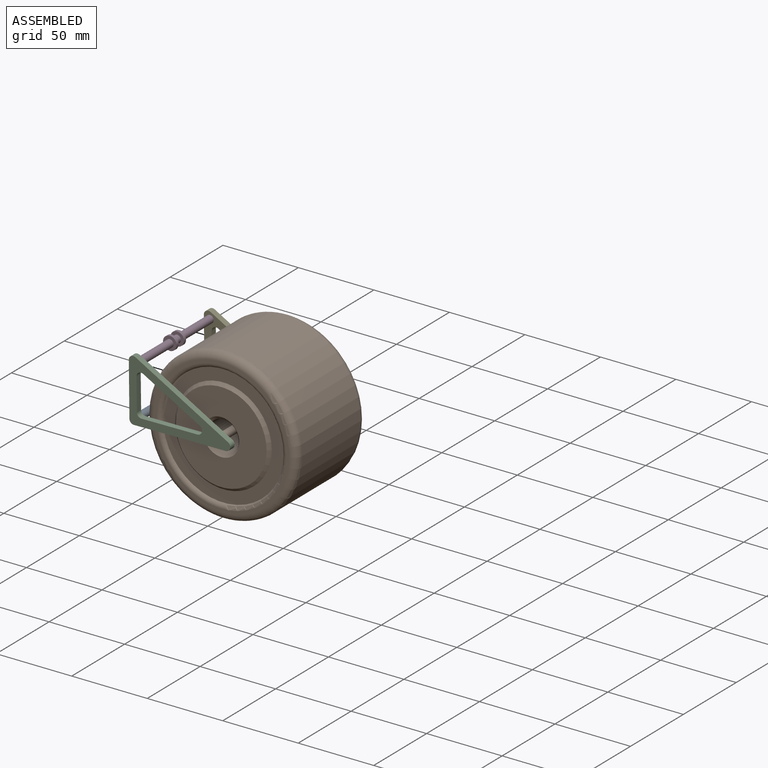
[diagram: assembled view]
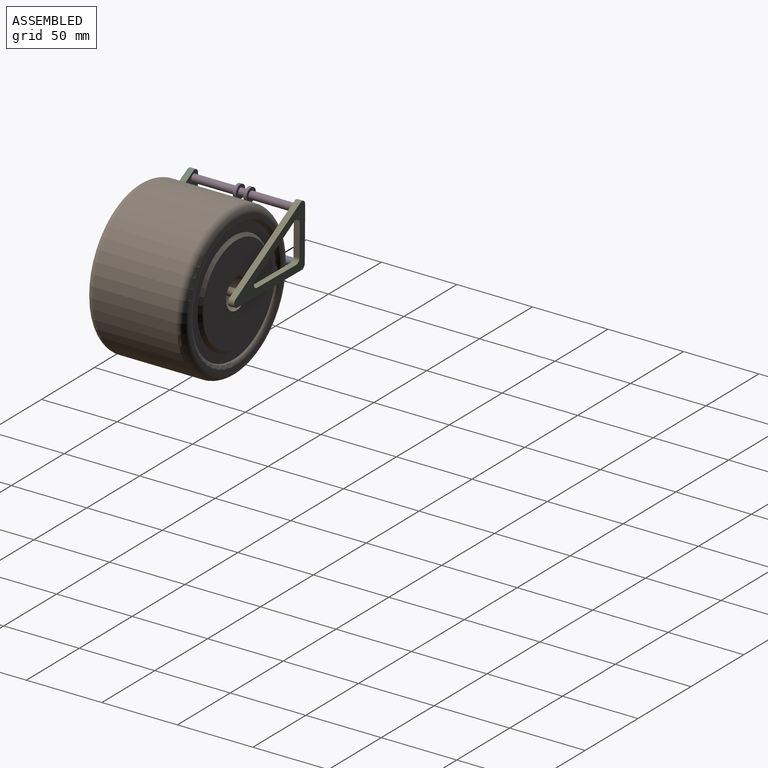
[diagram: assembled view, second angle]
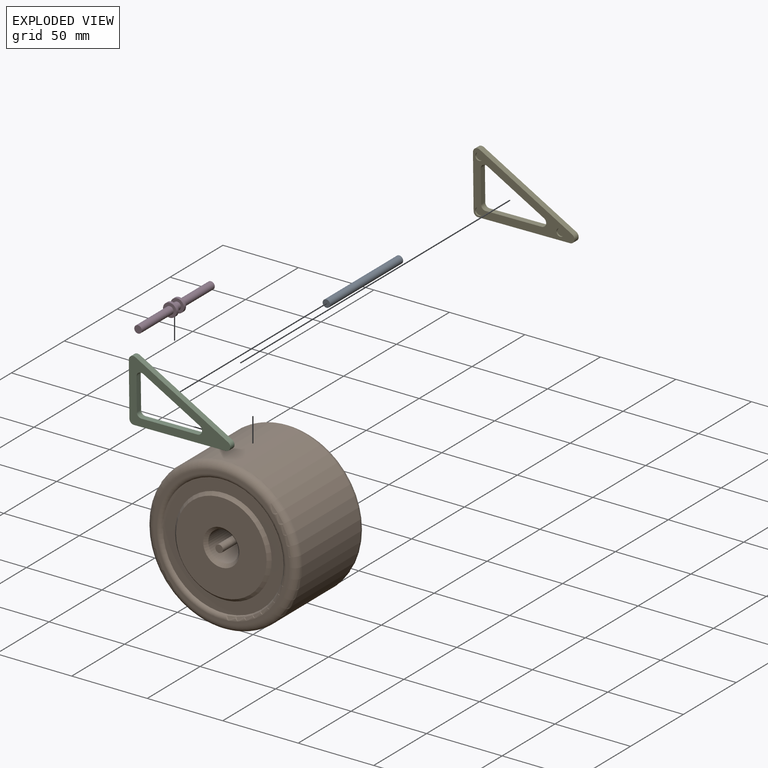
[diagram: exploded view]
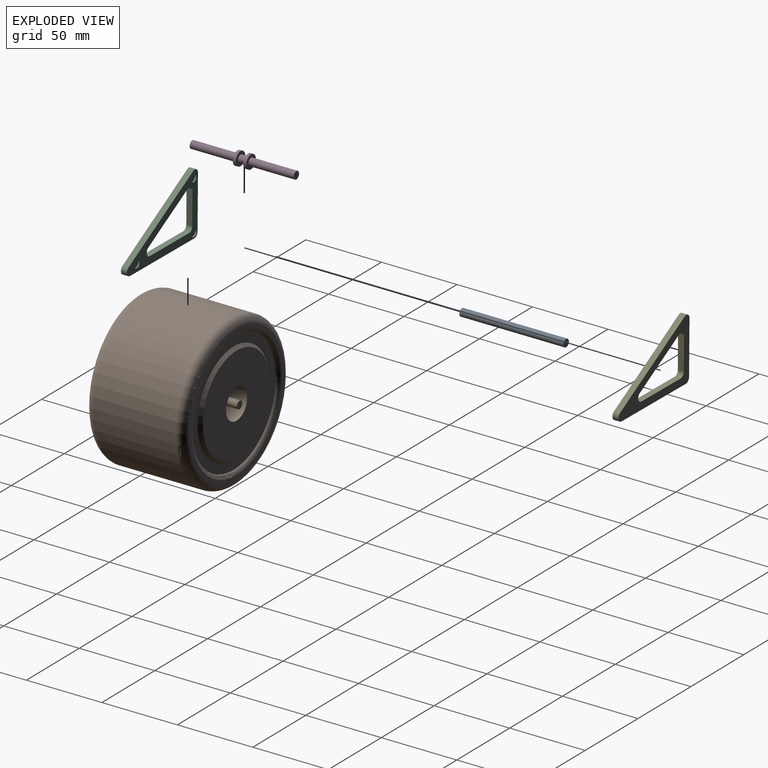
[diagram: exploded view, second angle]
ASSEMBLY  parts=5 mates=5
PART A: 3 faces, bbox 69x5x5 mm
  f0: plane 5x5mm, normal (-1,0,0), area 19.6mm2, adj f2
  f1: plane 5x5mm, normal (1,0,0), area 19.6mm2, adj f2
  f2: cylinder r=2.5mm len=69mm, axis (1,0,0), area 1083.8mm2, adj f0,f1
PART B: 22 faces, bbox 108.2x108.2x69 mm
  f0: cylinder r=50mm len=100mm, axis (0,0,-1), area 17278.8mm2, adj f3,f4
  f1: plane 90x90mm, normal (0,0,1), area 599.2mm2, adj f4,f10
  f2: plane 90x90mm, normal (0,0,-1), area 599.2mm2, adj f3,f17
  f3: torus R=45mm, axis (0,0,1), area 2377.7mm2, adj f0,f2
  f4: torus R=45mm, axis (0,0,1), area 2377.7mm2, adj f0,f1
  f5: plane 80x80mm, normal (0,0,1), area 1809.6mm2, adj f10,f11
  f6: plane 20x20mm, normal (0,0,1), area 294.5mm2, adj f7,f20
  f7: cylinder r=10mm len=28mm, axis (0,0,1), area 1759.3mm2, adj f6,f8
  f8: cone r=10mm half-angle=45deg, axis (0,0,1), area 195.5mm2, adj f7,f9
  f9: plane 60x60mm, normal (0,0,1), area 2375mm2, adj f8,f11
  f10: torus R=42.83mm, axis (0,0,1), area 956.1mm2, adj f1,f5
  f11: cone r=30mm half-angle=45deg, axis (0,0,-1), area 550.9mm2, adj f5,f9
  f12: plane 80x80mm, normal (0,0,-1), area 1394.9mm2, adj f16,f17
  f13: plane 20x20mm, normal (0,0,-1), area 294.5mm2, adj f14,f18
  f14: cylinder r=10mm len=30mm, axis (0,0,-1), area 1885mm2, adj f13,f15
  f15: plane 64x64mm, normal (0,0,-1), area 2902.8mm2, adj f14,f16
  f16: cone r=32mm half-angle=45deg, axis (0,0,1), area 586.5mm2, adj f12,f15
  f17: torus R=42.83mm, axis (0,0,1), area 956.1mm2, adj f2,f12
  f18: cylinder r=2.5mm len=32mm, axis (0,0,1), area 502.7mm2, adj f13,f19
  f19: plane 5x5mm, normal (0,0,-1), area 19.6mm2, adj f18
  f20: cylinder r=2.5mm len=32mm, axis (0,0,-1), area 502.7mm2, adj f6,f21
  f21: plane 5x5mm, normal (0,0,1), area 19.6mm2, adj f20
PART C: 20 faces, bbox 66.8x41.1x4 mm
  f0: cylinder r=3mm len=5.6mm, axis (0,0,-1), area 31.4mm2, adj f1,f11,f12,f13
  f1: plane 60.8x35.11mm, normal (0.5,0.87,0), area 280.8mm2, adj f0,f2,f12,f13
  f2: cylinder r=3mm len=4.5mm, axis (0,0,-1), area 25.1mm2, adj f1,f3,f12,f13
  f3: plane 35.11x4mm, normal (-1,0,0), area 140.4mm2, adj f2,f4,f12,f13
  f4: cylinder r=3mm len=4mm, axis (0,0,-1), area 18.8mm2, adj f3,f11,f12,f13
  f5: plane 37.14x21.45mm, normal (-0.5,-0.87,0), area 171.6mm2, adj f6,f10,f12,f13
  f6: cylinder r=3mm len=5.6mm, axis (0,0,-1), area 31.4mm2, adj f5,f7,f12,f13
  f7: plane 37.14x4mm, normal (0,1,0), area 148.6mm2, adj f6,f8,f12,f13
  f8: cylinder r=3mm len=4mm, axis (0,0,-1), area 18.8mm2, adj f7,f9,f12,f13
  f9: plane 21.45x4mm, normal (1,0,0), area 85.8mm2, adj f8,f10,f12,f13
  f10: cylinder r=3mm len=4.5mm, axis (0,0,-1), area 25.1mm2, adj f5,f9,f12,f13
  f11: plane 60.8x4mm, normal (0,-1,0), area 243.2mm2, adj f0,f4,f12,f13
  f12: plane 66.8x41.11mm, normal (0,0,1), area 862.9mm2, adj f0,f1,f2,f3,f4,f5,f6,f7
  f13: plane 66.8x41.11mm, normal (0,0,-1), area 804mm2, adj f0,f1,f2,f3,f4,f5,f6,f7
  f14: cylinder r=2.5mm len=5mm, axis (0,0,-1), area 15.7mm2, adj f13,f15
  f15: plane 5x5mm, normal (0,0,-1), area 19.6mm2, adj f14
  f16: cylinder r=2.5mm len=5mm, axis (0,0,-1), area 15.7mm2, adj f13,f17
  f17: plane 5x5mm, normal (0,0,-1), area 19.6mm2, adj f16
  f18: cylinder r=2.5mm len=5mm, axis (0,0,-1), area 15.7mm2, adj f13,f19
  f19: plane 5x5mm, normal (0,0,-1), area 19.6mm2, adj f18
PART D: 11 faces, bbox 69x9x9 mm
  f0: plane 5x5mm, normal (-1,0,0), area 19.6mm2, adj f6
  f1: plane 5x5mm, normal (1,0,0), area 19.6mm2, adj f8
  f2: plane 9x9mm, normal (1,0,0), area 44mm2, adj f7,f9
  f3: plane 9x9mm, normal (-1,0,0), area 44mm2, adj f6,f9
  f4: plane 9x9mm, normal (-1,0,0), area 44mm2, adj f7,f10
  f5: plane 9x9mm, normal (1,0,0), area 44mm2, adj f8,f10
  f6: cylinder r=2.5mm len=30mm, axis (1,0,0), area 471.2mm2, adj f0,f3
  f7: cylinder r=2.5mm len=5mm, axis (1,0,0), area 78.5mm2, adj f2,f4
  f8: cylinder r=2.5mm len=30mm, axis (-1,0,0), area 471.2mm2, adj f1,f5
  f9: cylinder r=4.5mm len=9mm, axis (1,0,0), area 56.5mm2, adj f2,f3
  f10: cylinder r=4.5mm len=9mm, axis (1,0,0), area 56.5mm2, adj f4,f5
PART E: 20 faces, bbox 66.8x41.1x4 mm
  f0: cylinder r=3mm len=5.6mm, axis (0,0,-1), area 31.4mm2, adj f1,f11,f12,f13
  f1: plane 60.8x35.11mm, normal (0.5,0.87,0), area 280.8mm2, adj f0,f2,f12,f13
  f2: cylinder r=3mm len=4.5mm, axis (0,0,-1), area 25.1mm2, adj f1,f3,f12,f13
  f3: plane 35.11x4mm, normal (-1,0,0), area 140.4mm2, adj f2,f4,f12,f13
  f4: cylinder r=3mm len=4mm, axis (0,0,-1), area 18.8mm2, adj f3,f11,f12,f13
  f5: plane 37.14x21.45mm, normal (-0.5,-0.87,0), area 171.6mm2, adj f6,f10,f12,f13
  f6: cylinder r=3mm len=5.6mm, axis (0,0,-1), area 31.4mm2, adj f5,f7,f12,f13
  f7: plane 37.14x4mm, normal (0,1,0), area 148.6mm2, adj f6,f8,f12,f13
  f8: cylinder r=3mm len=4mm, axis (0,0,-1), area 18.8mm2, adj f7,f9,f12,f13
  f9: plane 21.45x4mm, normal (1,0,0), area 85.8mm2, adj f8,f10,f12,f13
  f10: cylinder r=3mm len=4.5mm, axis (0,0,-1), area 25.1mm2, adj f5,f9,f12,f13
  f11: plane 60.8x4mm, normal (0,-1,0), area 243.2mm2, adj f0,f4,f12,f13
  f12: plane 66.8x41.11mm, normal (0,0,1), area 804mm2, adj f0,f1,f2,f3,f4,f5,f6,f7
  f13: plane 66.8x41.11mm, normal (0,0,-1), area 862.9mm2, adj f0,f1,f2,f3,f4,f5,f6,f7
  f14: cylinder r=2.5mm len=5mm, axis (0,0,1), area 15.7mm2, adj f12,f15
  f15: plane 5x5mm, normal (0,0,1), area 19.6mm2, adj f14
  f16: cylinder r=2.5mm len=5mm, axis (0,0,1), area 15.7mm2, adj f12,f17
  f17: plane 5x5mm, normal (0,0,1), area 19.6mm2, adj f16
  f18: cylinder r=2.5mm len=5mm, axis (0,0,1), area 15.7mm2, adj f12,f19
  f19: plane 5x5mm, normal (0,0,1), area 19.6mm2, adj f18
PLACE A rot(axis=(0.1,-0.1,-0.99),90.6deg) t=(-19.6,56.6,-71.9)mm
PLACE B rot(axis=(1,0,0),90deg) t=(36.33,54.6,-66.99)mm fixed
PLACE C rot(axis=(1,-0.01,0.01),90deg) t=(-20.99,-11.4,-72.37)mm
PLACE D rot(axis=(0.52,-0.52,-0.67),112.3deg) t=(-15.58,56.6,-38.98)mm
PLACE E rot(axis=(1,-0.01,0.01),90deg) t=(-20.99,59.6,-72.37)mm
MATE revolute B.f20 <-> C.f14  axis (0,-1,0) through (36.33,-12.4,-66.99)mm
MATE revolute A.f2 <-> C.f16  axis (0,-1,0) through (-17.65,-12.4,-68.95)mm
MATE revolute E.f14 <-> B.f18  axis (0,-1,0) through (36.33,56.6,-66.99)mm
MATE revolute D.f6 <-> C.f18  axis (0,1,0) through (-17.4,-12.4,-35.95)mm
MATE revolute D.f6 <-> E.f18  axis (0,1,0) through (-17.4,56.6,-35.95)mm
